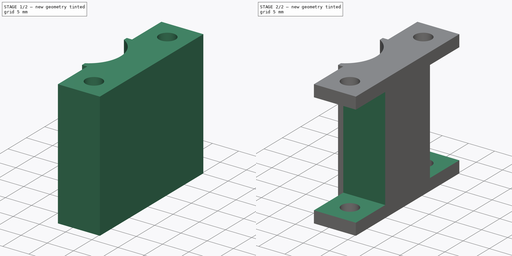
[diagram: build sequence overview — one tinted view per stage of 2, left to right]
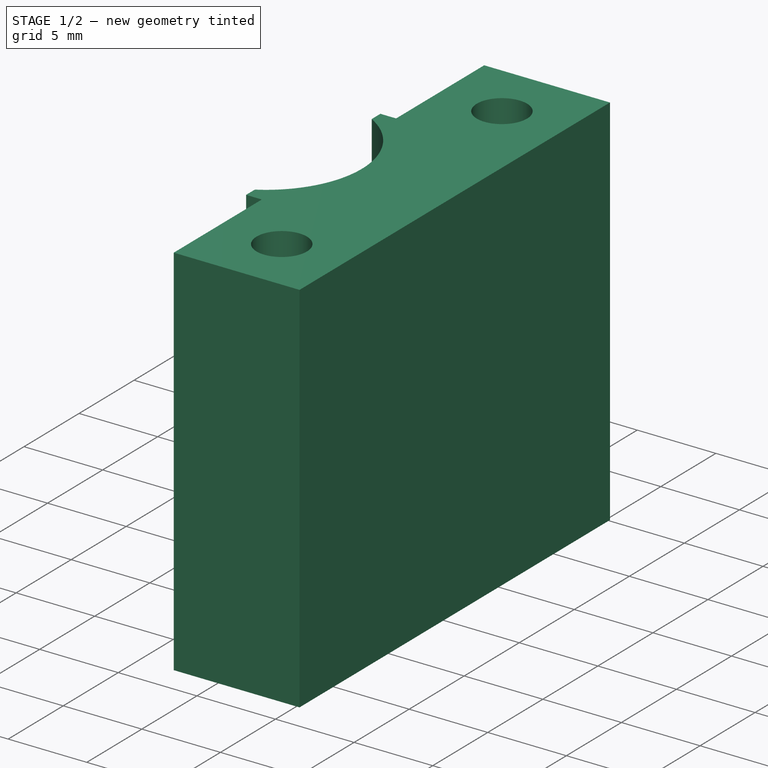
[diagram: stage 1 of 2 — iso view after this stage's code; geometry added in this stage tinted green]
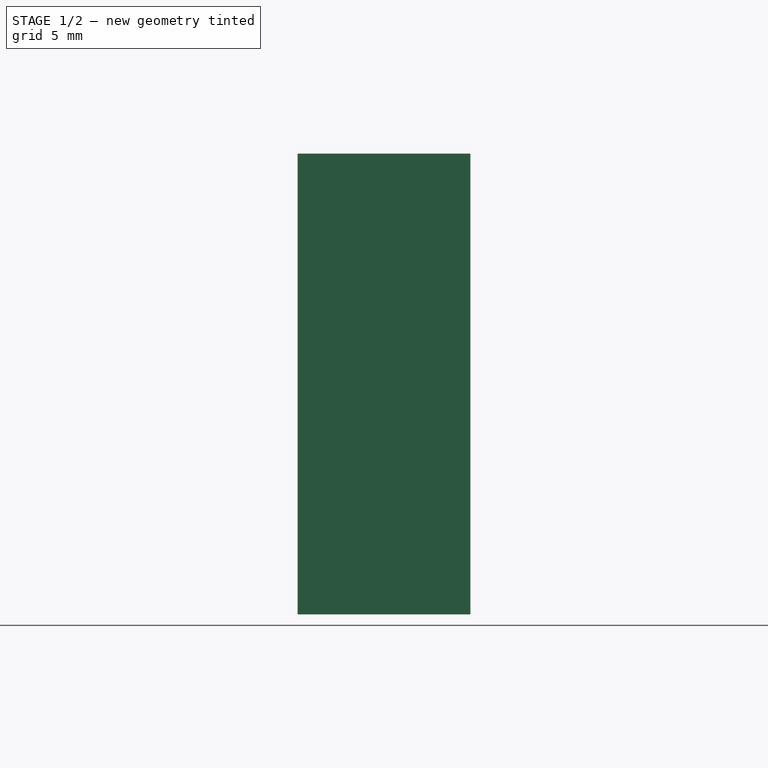
[diagram: stage 1 of 2 — front view after this stage's code; geometry added in this stage tinted green]
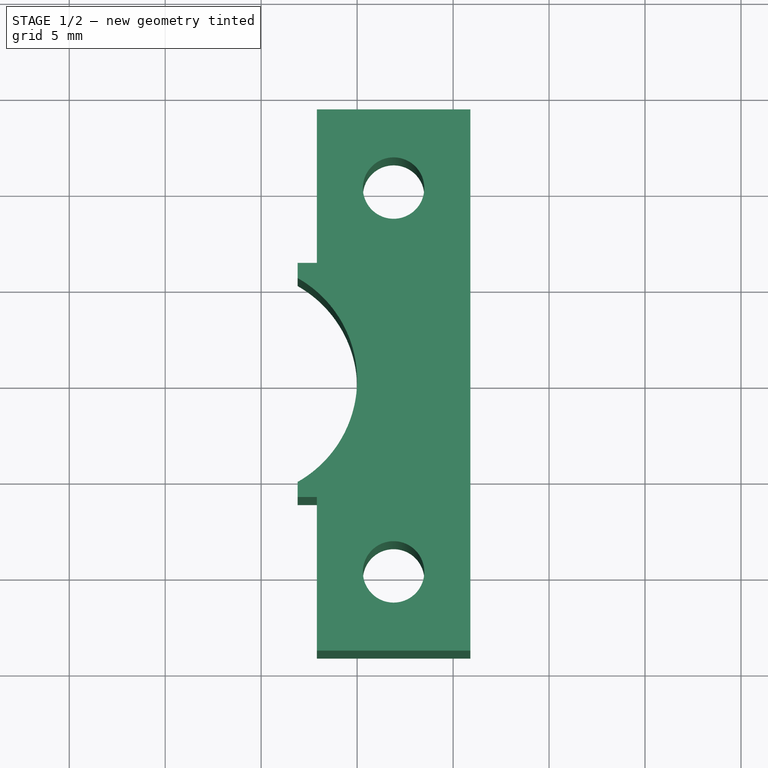
[diagram: stage 1 of 2 — top view after this stage's code; geometry added in this stage tinted green]
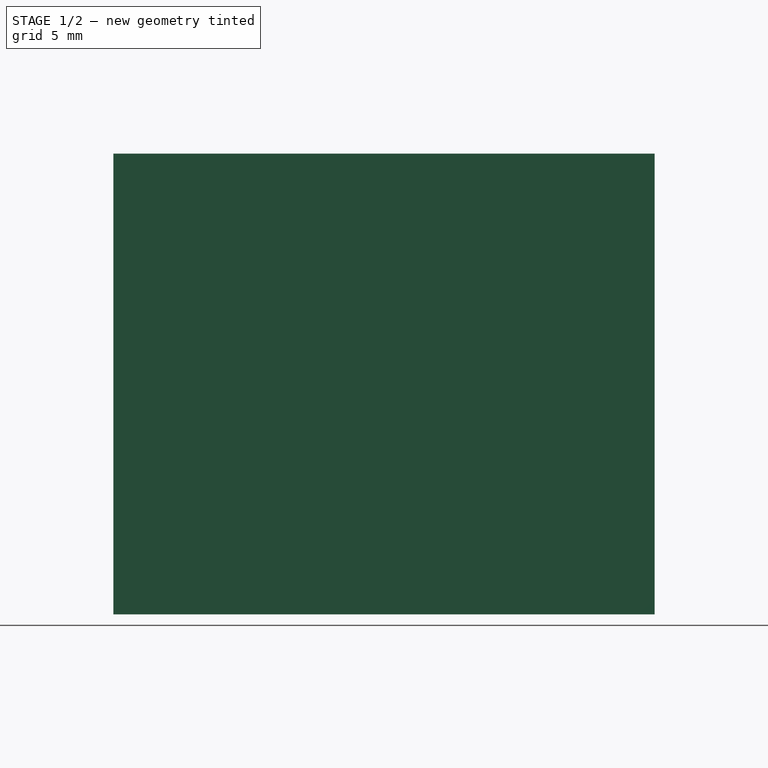
[diagram: stage 1 of 2 — right view after this stage's code; geometry added in this stage tinted green]
FCSTD DOCUMENT  (FreeCAD 0.18R15441 (Git))
Label: BearingClamp
License: All rights reserved
LicenseURL: http://en.wikipedia.org/wiki/All_rights_reserved
objects: Sketcher::SketchObject×3, PartDesign::Pocket×2, PartDesign::Pad×1, PartDesign::Body×1, Part::FeaturePython×1, App::Part×1
note: 11 computed .brp shape members not serialized (recipe doc carries the construction recipe); baked Part::Feature solids carry a one-line shape summary decoded from their .brp

FEATURE [Sketcher::SketchObject] Sketch  label="BC_BaseSketch"
  MapMode = 5
  Support = -> [XY_Plane001]
  sketch-geometry (10):
    g0: ArcOfCircle CenterX=-6.1 CenterY=-2e-16 CenterZ=0 NormalX=0 NormalY=0 NormalZ=1 AngleXU=0 Radius=6.1 StartAngle=4.71239 EndAngle=7.85398
    g1: LineSegment StartX=-6.1 StartY=6.1 StartZ=0 EndX=-2.1 EndY=6.1 EndZ=0
    g2: LineSegment StartX=-6.1 StartY=-6.1 StartZ=0 EndX=-2.1 EndY=-6.1 EndZ=0
    g3: LineSegment StartX=-2.1 StartY=6.1 StartZ=0 EndX=-2.1 EndY=14.1 EndZ=0
    g4: LineSegment StartX=-2.1 StartY=14.1 StartZ=0 EndX=5.9 EndY=14.1 EndZ=0
    g5: LineSegment StartX=-2.1 StartY=-6.1 StartZ=0 EndX=-2.1 EndY=-14.1 EndZ=0
    g6: LineSegment StartX=-2.1 StartY=-14.1 StartZ=0 EndX=5.9 EndY=-14.1 EndZ=0
    g7: LineSegment StartX=5.9 StartY=14.1 StartZ=0 EndX=5.9 EndY=-14.1 EndZ=0
    g8: Circle CenterX=1.9 CenterY=10 CenterZ=0 NormalX=0 NormalY=0 NormalZ=1 AngleXU=0 Radius=1.6
    g9: Circle CenterX=1.9 CenterY=-10 CenterZ=0 NormalX=0 NormalY=0 NormalZ=1 AngleXU=0 Radius=1.6
  constraints (29):
    c: Tangent(g0,g-2)
    c: Symmetric(g0,g0,g-1)
    c: Radius(g0) = 6.1
    c: Angle(g0) = 3.14159
    c: Coincident(g1,g0)
    c: Horizontal(g1)
    c: Coincident(g2,g0)
    c: Horizontal(g2)
    c: Equal(g1,g2)
    c: Coincident(g3,g1)
    c: Vertical(g3)
    c: Coincident(g4,g3)
    c: Horizontal(g4)
    c: Coincident(g5,g2)
    c: Vertical(g5)
    c: Coincident(g6,g5)
    c: Horizontal(g6)
    c: Coincident(g7,g4)
    c: Coincident(g7,g6)
    c: Equal(g3,g5)
    c: Equal(g4,g6)
    c: Distance(g1) = 4
    c: Distance(g0,g7) = 12
    c: DistanceX(g0,g8) = 8
    c: Symmetric(g8,g9,g-1)
    c: Equal(g8,g9)
    c: Radius(g8) = 1.6
    c: Distance(g8,g9) = 20
    c: Distance(g3) = 8
FEATURE [PartDesign::Pad] Pad  label="BC_BaseSketch001"
  Length = 24
  Length2 = 100
  Midplane = true
  Profile = -> Sketch
  Type = 0
FEATURE [Sketcher::SketchObject] Sketch001  label="BC_ClipCutSketch_1"
  ExternalGeometry = -> [Sketch]
  MapMode = 5
  Support = -> [XY_Plane001]
  sketch-geometry (4):
    g0: LineSegment StartX=-11.1 StartY=16 StartZ=0 EndX=-3.1 EndY=16 EndZ=0
    g1: LineSegment StartX=-3.1 StartY=16 StartZ=0 EndX=-3.1 EndY=-16 EndZ=0
    g2: LineSegment StartX=-3.1 StartY=-16 StartZ=0 EndX=-11.1 EndY=-16 EndZ=0
    g3: LineSegment StartX=-11.1 StartY=-16 StartZ=0 EndX=-11.1 EndY=16 EndZ=0
  constraints (11):
    c: Coincident(g0,g1)
    c: Coincident(g1,g2)
    c: Coincident(g2,g3)
    c: Coincident(g3,g0)
    c: Horizontal(g0)
    c: Horizontal(g2)
    c: Vertical(g3)
    c: Symmetric(g0,g1,g-1)
    c: Distance(g-3,g1) = 3
    c: Distance(g0) = 8
    c: Distance(g3) = 32
FEATURE [PartDesign::Pocket] Pocket  label="BC_ClipCutPocket_1"
  BaseFeature = -> Pad
  Length = 19
  Length2 = 100
  Midplane = true
  Profile = -> Sketch001
  Type = 1
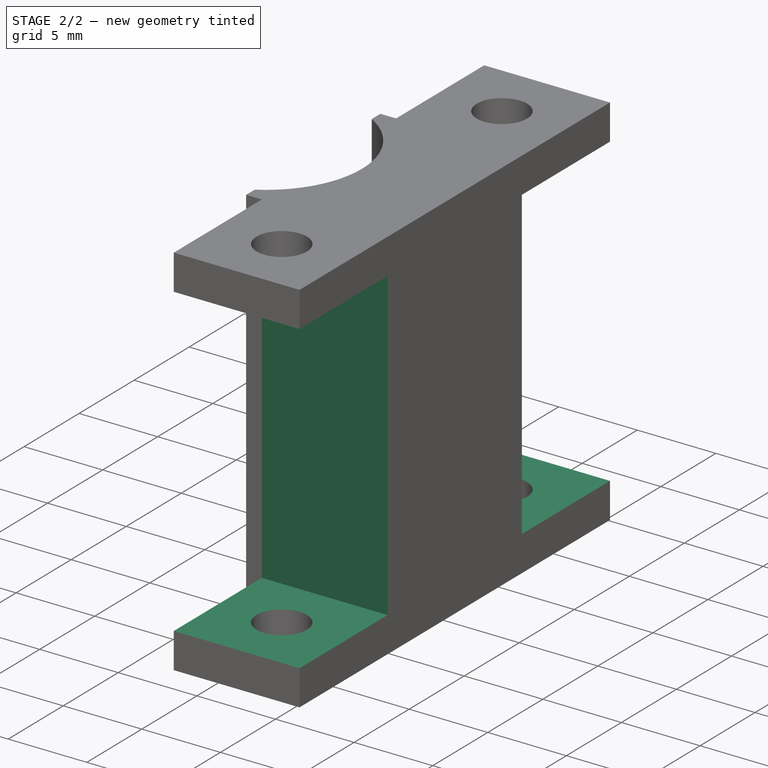
[diagram: stage 2 of 2 — iso view after this stage's code; geometry added in this stage tinted green]
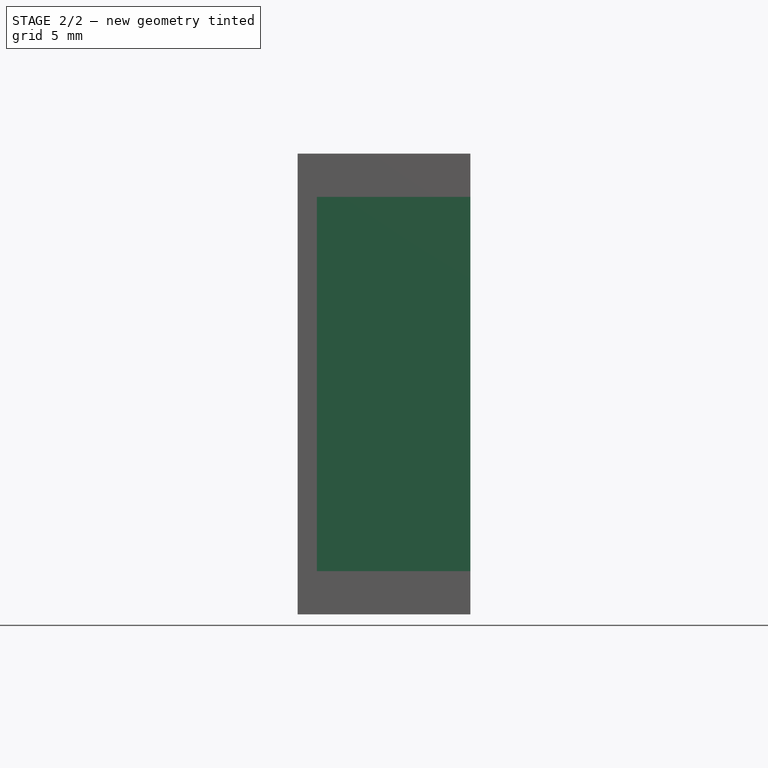
[diagram: stage 2 of 2 — front view after this stage's code; geometry added in this stage tinted green]
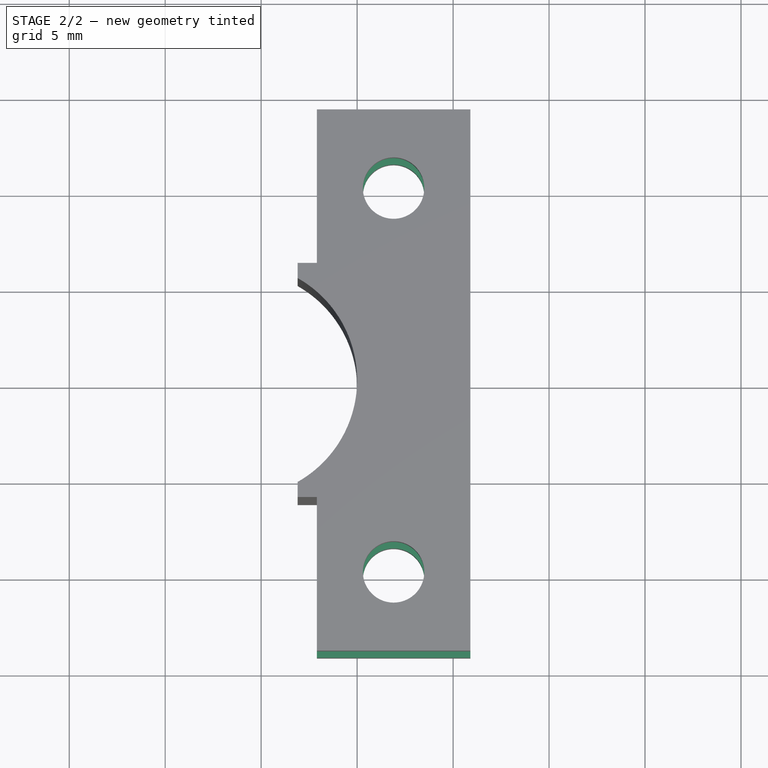
[diagram: stage 2 of 2 — top view after this stage's code; geometry added in this stage tinted green]
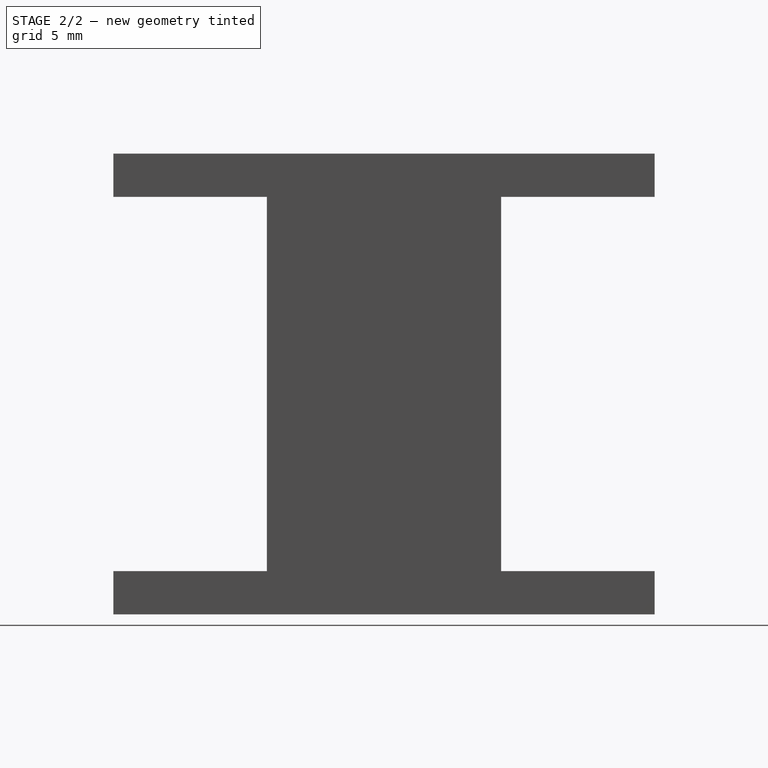
[diagram: stage 2 of 2 — right view after this stage's code; geometry added in this stage tinted green]
FEATURE [Sketcher::SketchObject] Sketch002  label="BC_ClipCutSketch_2"
  ExternalGeometry = -> [Sketch]
  MapMode = 5
  Support = -> [XY_Plane001]
  sketch-geometry (8):
    g0: LineSegment StartX=-6.1 StartY=6.1 StartZ=0 EndX=17.9 EndY=6.1 EndZ=0
    g1: LineSegment StartX=17.9 StartY=6.1 StartZ=0 EndX=17.9 EndY=22.1 EndZ=0
    g2: LineSegment StartX=17.9 StartY=22.1 StartZ=0 EndX=-6.1 EndY=22.1 EndZ=0
    g3: LineSegment StartX=-6.1 StartY=22.1 StartZ=0 EndX=-6.1 EndY=6.1 EndZ=0
    g4: LineSegment StartX=-6.1 StartY=-6.1 StartZ=0 EndX=17.9 EndY=-6.1 EndZ=0
    g5: LineSegment StartX=17.9 StartY=-6.1 StartZ=0 EndX=17.9 EndY=-22.1 EndZ=0
    g6: LineSegment StartX=17.9 StartY=-22.1 StartZ=0 EndX=-6.1 EndY=-22.1 EndZ=0
    g7: LineSegment StartX=-6.1 StartY=-22.1 StartZ=0 EndX=-6.1 EndY=-6.1 EndZ=0
  constraints (22):
    c: Coincident(g0,g1)
    c: Coincident(g1,g2)
    c: Coincident(g2,g3)
    c: Coincident(g3,g0)
    c: Horizontal(g0)
    c: Horizontal(g2)
    c: Vertical(g1)
    c: Vertical(g3)
    c: Coincident(g0,g-3)
    c: Coincident(g4,g5)
    c: Coincident(g5,g6)
    c: Coincident(g6,g7)
    c: Coincident(g7,g4)
    c: Horizontal(g4)
    c: Horizontal(g6)
    c: Vertical(g5)
    c: Vertical(g7)
    c: Symmetric(g0,g4,g-1)
    c: Equal(g0,g4)
    c: Equal(g3,g7)
    c: Distance(g0) = 24
    c: Distance(g3) = 16
FEATURE [PartDesign::Pocket] Pocket001  label="BC_ClipCutPocket_2"
  BaseFeature = -> Pocket
  Length = 19.5
  Length2 = 100
  Midplane = true
  Profile = -> Sketch002
  Type = 0
FEATURE [PartDesign::Body] Body  label="BearingClampBody"
  Group = -> [Sketch,Pad,Sketch001,Pocket,Sketch002,Pocket001]
  Origin = -> Origin001
  Tip = -> Pocket001
FEATURE [Part::FeaturePython] refine  label="BearingClampBody_Refined"  # WARN: FeaturePython — macro-defined, semantics opaque (R4)
  Base = -> Body
FEATURE [App::Part] Part  label="BearingClampPart"
  Group = -> [Body,refine]
  License = CC BY 3.0
  LicenseURL = http://creativecommons.org/licenses/by/3.0/
  Origin = -> Origin
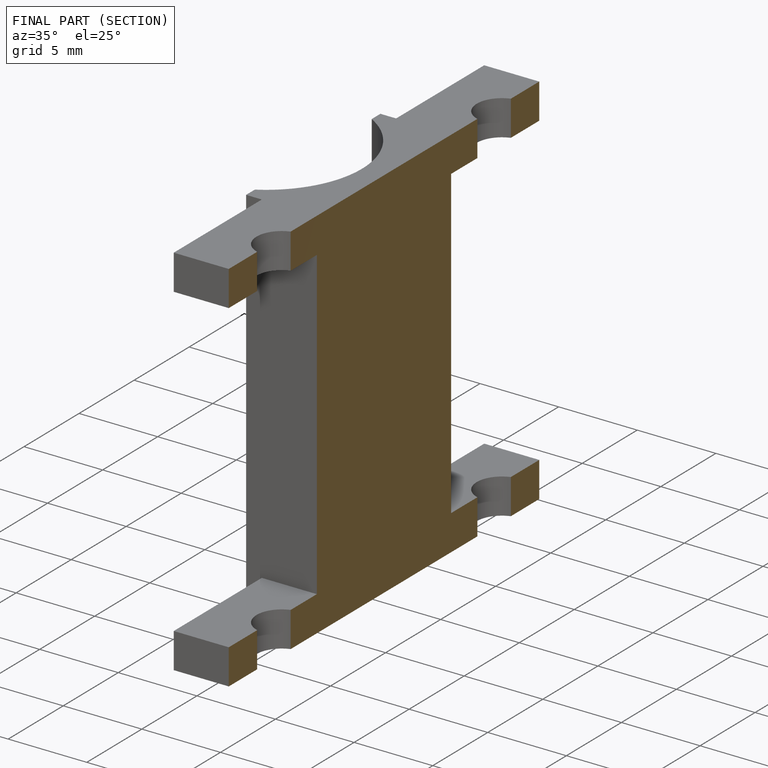
[diagram: finished part — half-section view (interior)]
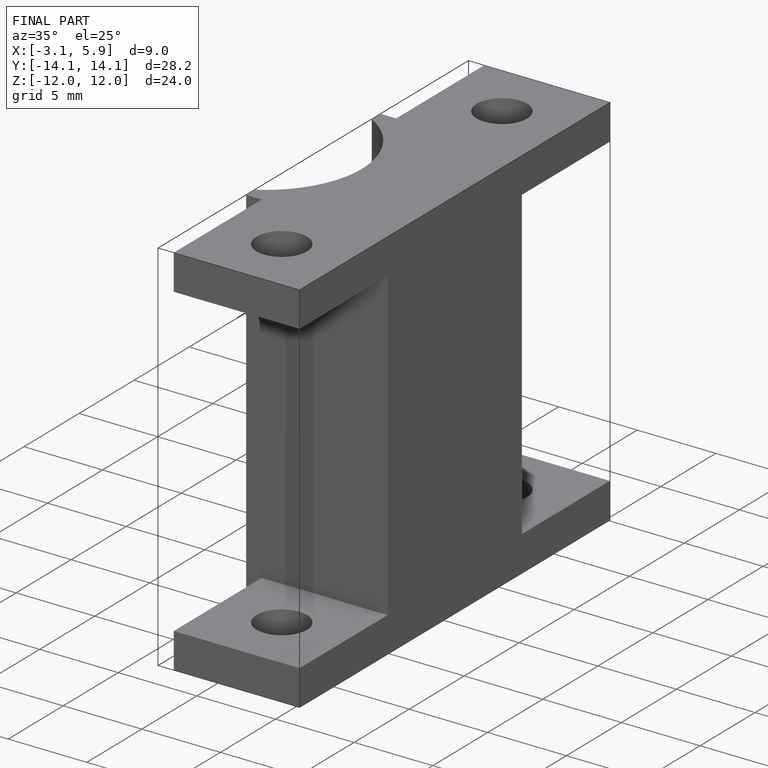
[diagram: finished part — iso view with bounding-box wireframe]
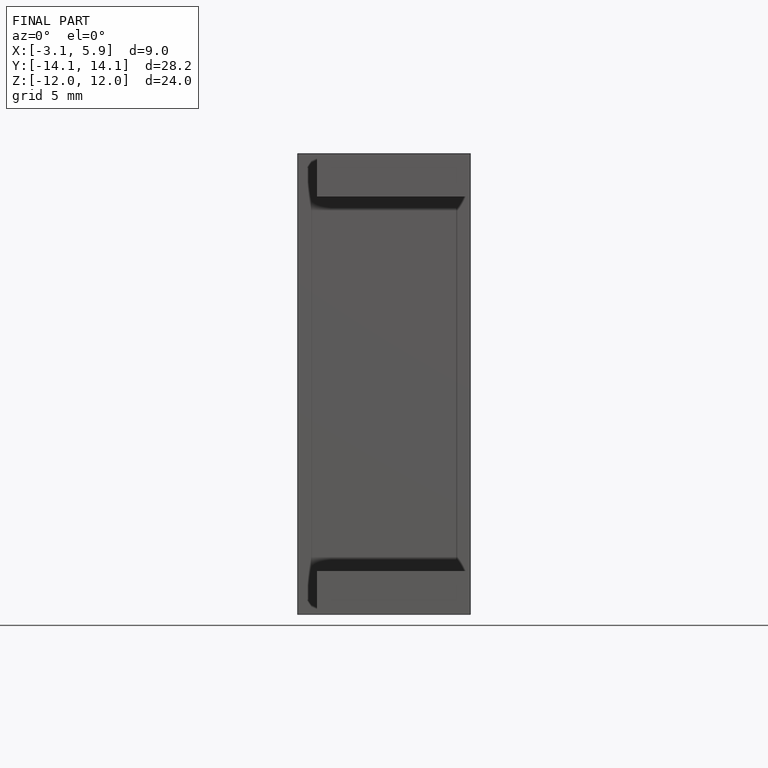
[diagram: finished part — front view with bounding-box wireframe]
